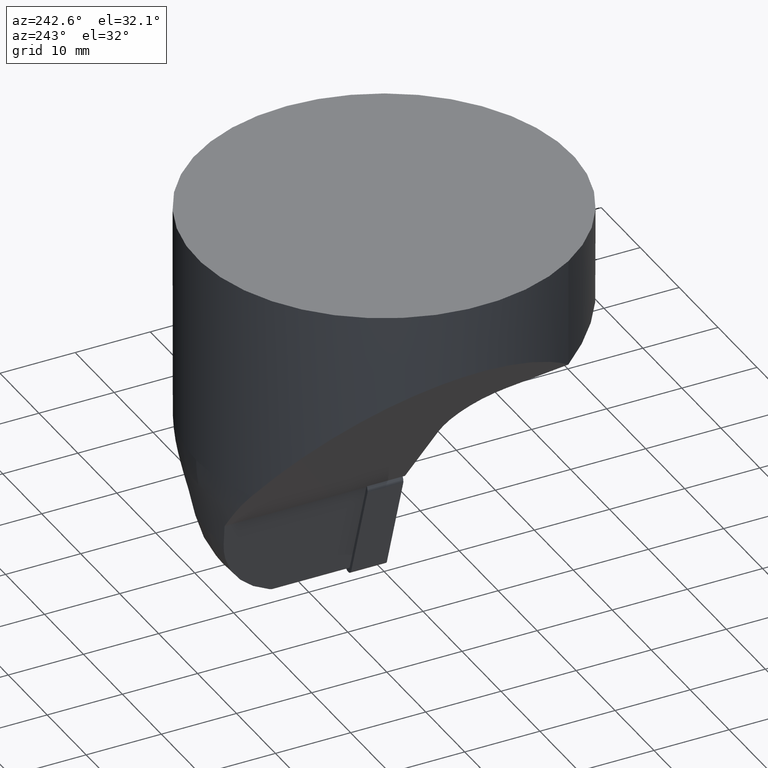
[diagram: clean part render]
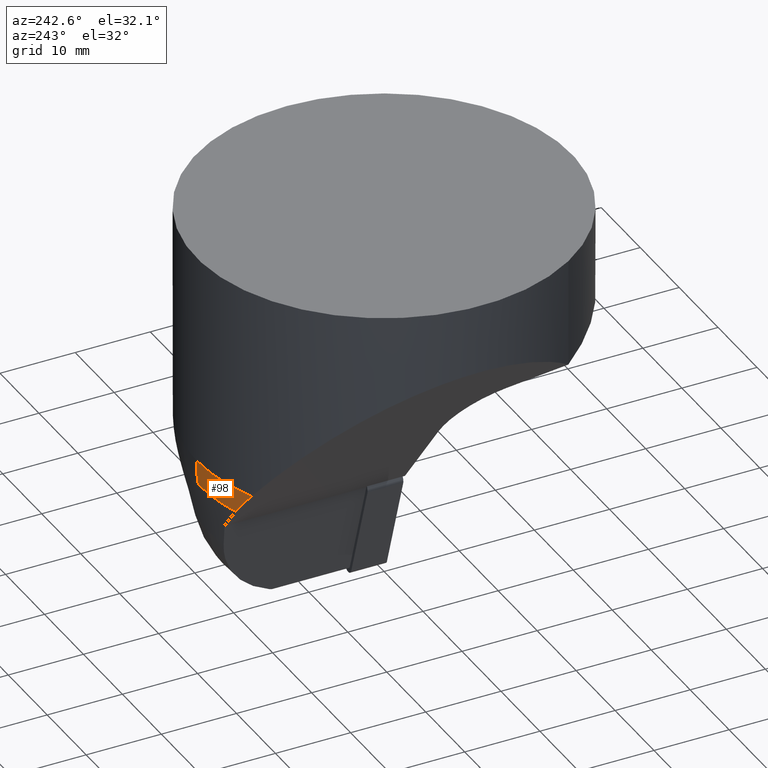
[diagram: same view with one face highlighted and labeled with its STEP entity id]
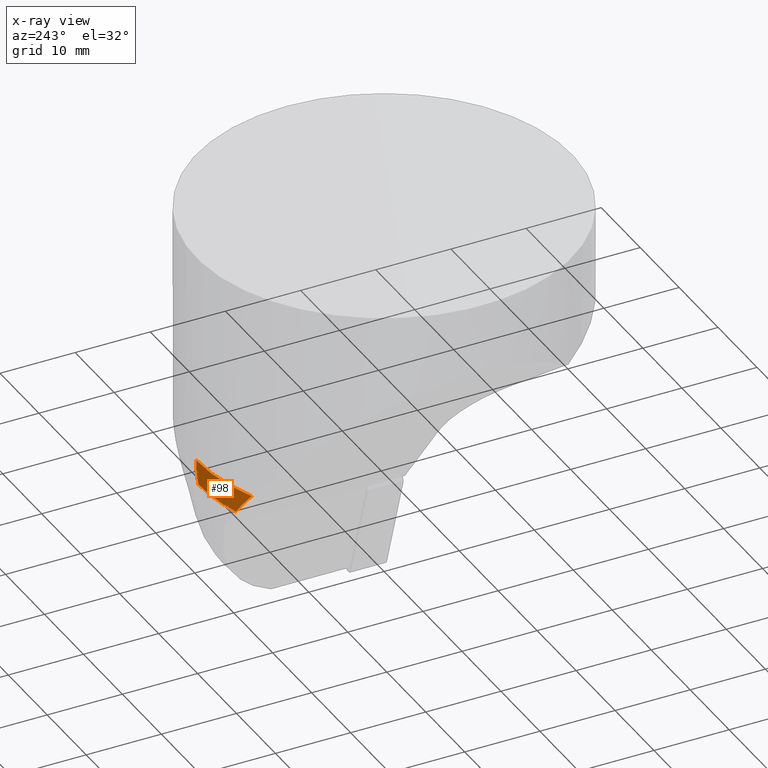
[diagram: x-ray of the same camera — body ghosted, the highlighted face saturated]
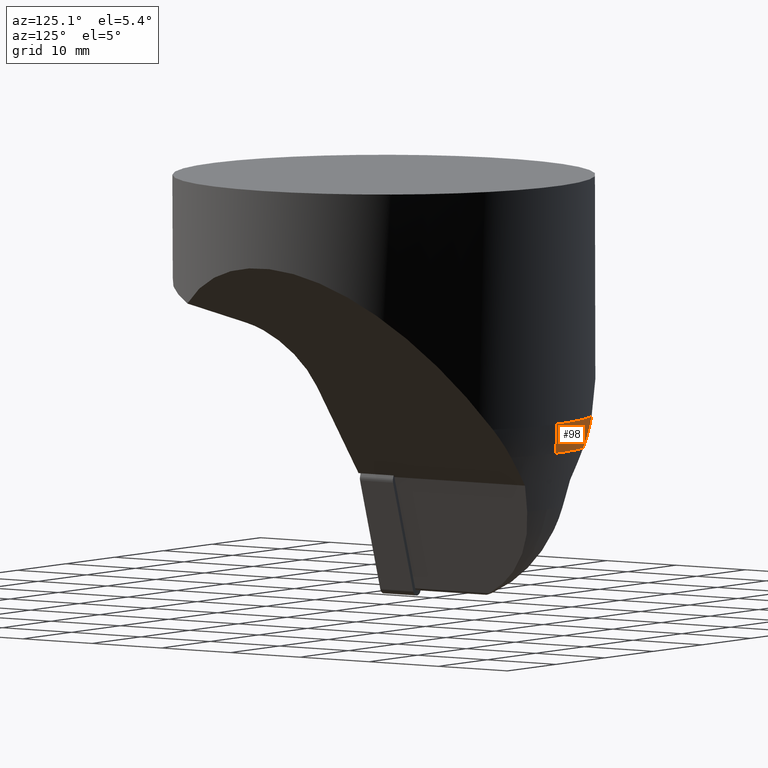
[diagram: same view with one face highlighted and labeled with its STEP entity id]
A machine part, auxiliary view. The second image highlights one B-rep face of the part: STEP entity #98.
The next image is the same camera in x-ray: the body ghosted, the highlighted face saturated — about 0% of this face is hidden behind the body in this view.
A second angle (auxiliary view) of the same face is appended — the face is thin or edge-on in the first view.
In plain terms, the highlighted toroidal blend (fillet) surface has major radius 5 mm and minor (blend) radius 20 mm.
Its self-contained STEP definition (entity closure, byte-faithful):
#98=ADVANCED_FACE('',(#151),#152,.T.);
#151=FACE_OUTER_BOUND('',#280,.T.);
#152=TOROIDAL_SURFACE('',#281,5.00000000002026,19.9999999999999);
#280=EDGE_LOOP('',(#474,#475,#476,#477));
#281=AXIS2_PLACEMENT_3D('',#478,#479,#480);
#474=ORIENTED_EDGE('',*,*,#577,.T.);
#475=ORIENTED_EDGE('',*,*,#583,.T.);
#476=ORIENTED_EDGE('',*,*,#584,.T.);
#477=ORIENTED_EDGE('',*,*,#574,.T.);
#478=CARTESIAN_POINT('',(4.10352307689266E-012,-1.97419858238845E-011,-28.2502267296943));
#479=DIRECTION('',(9.82398194209891E-012,-4.87179384742911E-011,1.0));
#480=DIRECTION('',(0.978377767610177,0.206825878086197,4.64564881941152E-013));
#574=EDGE_CURVE('',#691,#689,#692,.T.);
#577=EDGE_CURVE('',#689,#696,#697,.T.);
#583=EDGE_CURVE('',#696,#704,#706,.T.);
#584=EDGE_CURVE('',#704,#691,#707,.T.);
#689=VERTEX_POINT('',#942);
#691=VERTEX_POINT('',#944);
#692=CIRCLE('',#945,25.0);
#696=VERTEX_POINT('',#949);
#697=CIRCLE('',#950,20.0);
#704=VERTEX_POINT('',#982);
#706=CIRCLE('',#984,24.696155060248);
#707=CIRCLE('',#985,20.5080994719775);
#942=CARTESIAN_POINT('',(3.93253988072716E-014,25.0,-28.2502267294459));
#944=CARTESIAN_POINT('',(-10.1176920443311,22.8611528076797,-28.2502267294459));
#945=AXIS2_PLACEMENT_3D('',#1087,#1088,#1089);
#949=CARTESIAN_POINT('',(3.93067936706263E-014,24.696155060248,-31.7231902827742));
#950=AXIS2_PLACEMENT_3D('',#1096,#1097,#1098);
#982=CARTESIAN_POINT('',(-7.40431553873398,23.5600548845429,-31.7231902827741));
#984=AXIS2_PLACEMENT_3D('',#1111,#1112,#1113);
#985=AXIS2_PLACEMENT_3D('',#1114,#1115,#1116);
#1087=CARTESIAN_POINT('',(3.95709471477376E-014,-1.07390810496891E-015,-28.2502267294459));
#1088=DIRECTION('',(0.0,0.0,-1.0));
#1089=DIRECTION('',(1.0,0.0,0.0));
#1096=CARTESIAN_POINT('',(3.98771088475245E-014,5.0,-28.2502267294459));
#1097=DIRECTION('',(-1.0,0.0,0.0));
#1098=DIRECTION('',(0.0,1.0,0.0));
#1111=CARTESIAN_POINT('',(2.20759344766563E-013,-1.16198382001198E-015,-31.7231902827742));
#1112=DIRECTION('',(0.0,0.0,1.0));
#1113=DIRECTION('',(1.0,0.0,0.0));
#1114=CARTESIAN_POINT('',(-6.79521471376065,3.07583308038863,-32.502803786859));
#1115=DIRECTION('',(0.788010753606708,4.61171274346844E-014,0.615661475325677));
#1116=DIRECTION('',(-0.0297005008097222,0.998835695728126,0.038014907483271));